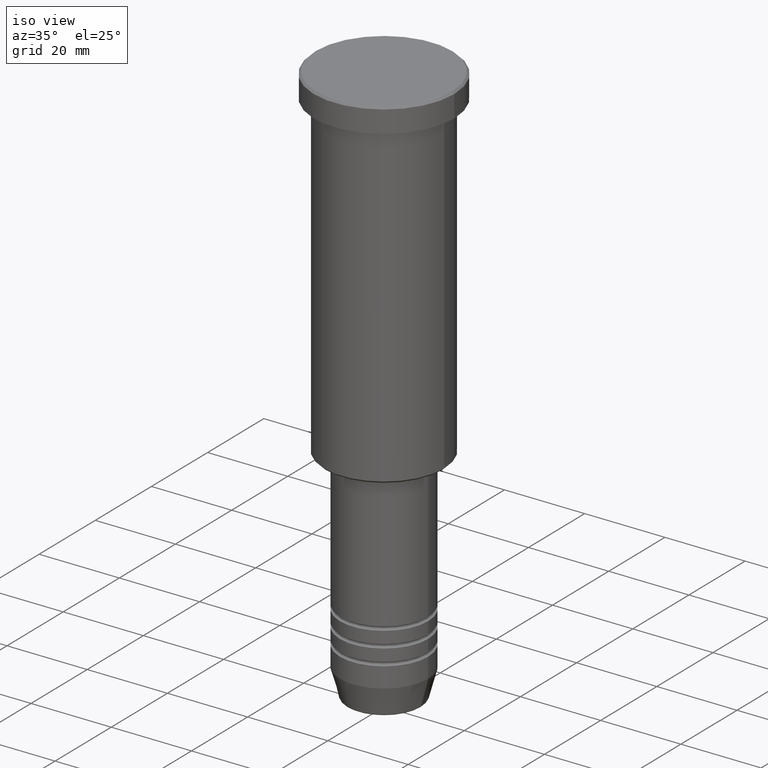
[diagram: clean part render]
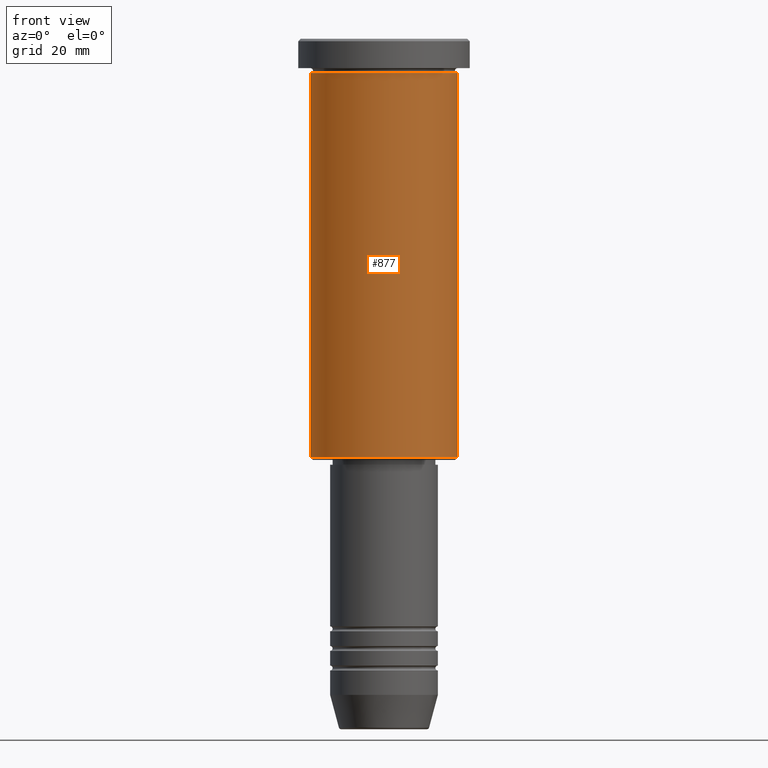
[diagram: tour spotlight — one face highlighted and labeled with its STEP entity id]
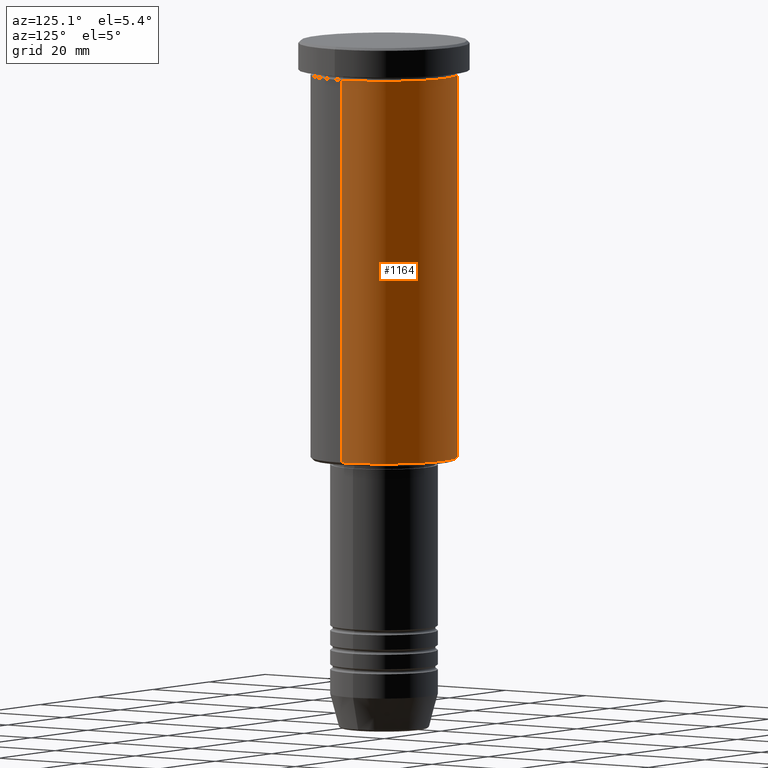
[diagram: tour spotlight — one face highlighted and labeled with its STEP entity id]
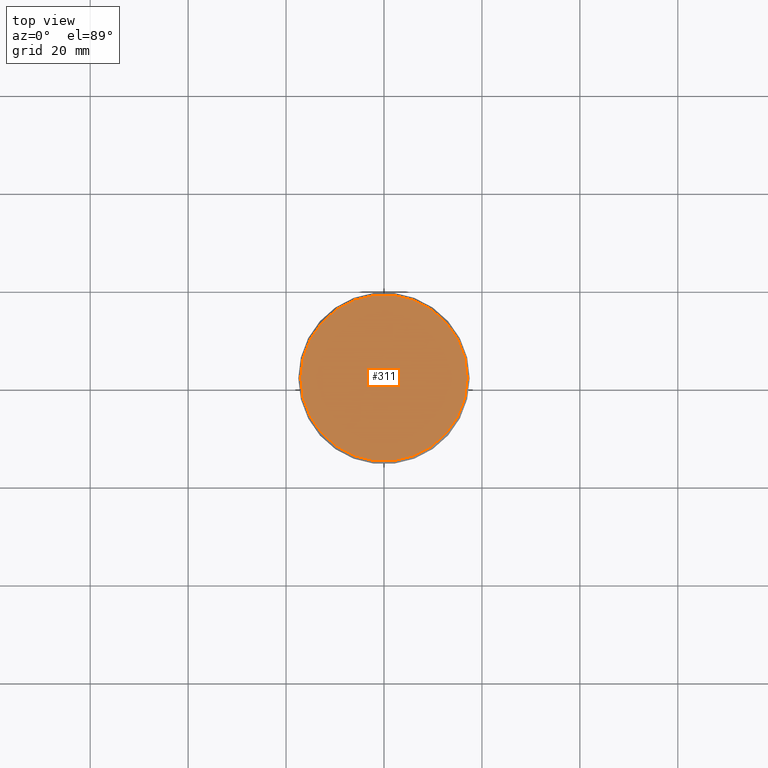
[diagram: tour spotlight — one face highlighted and labeled with its STEP entity id]
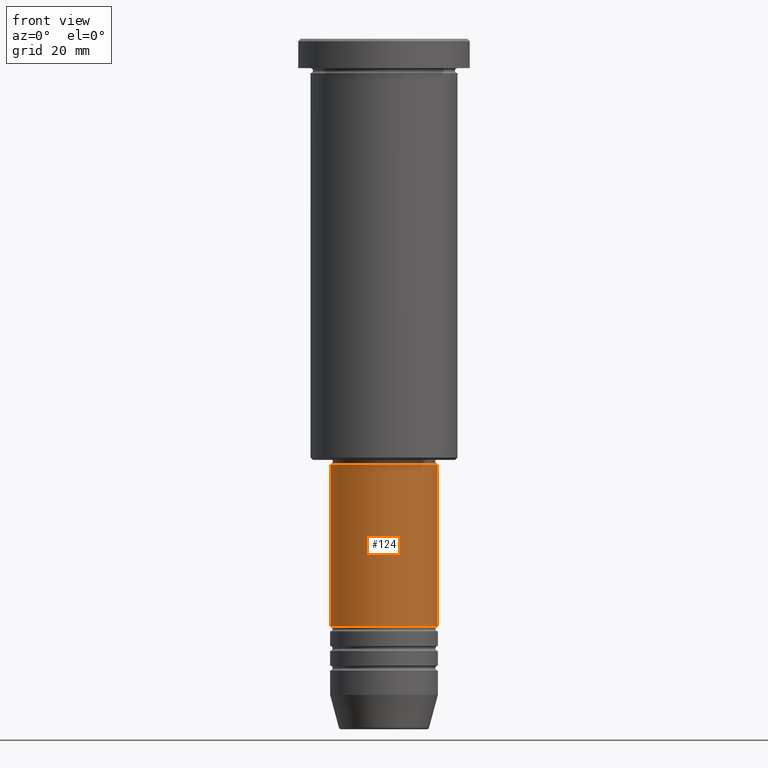
[diagram: tour spotlight — one face highlighted and labeled with its STEP entity id]
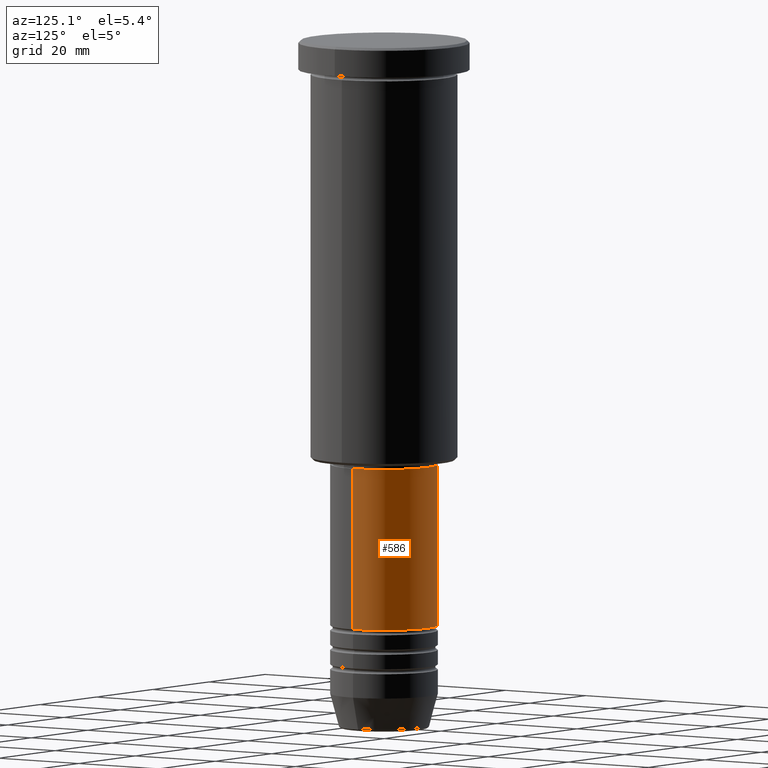
[diagram: tour spotlight — one face highlighted and labeled with its STEP entity id]
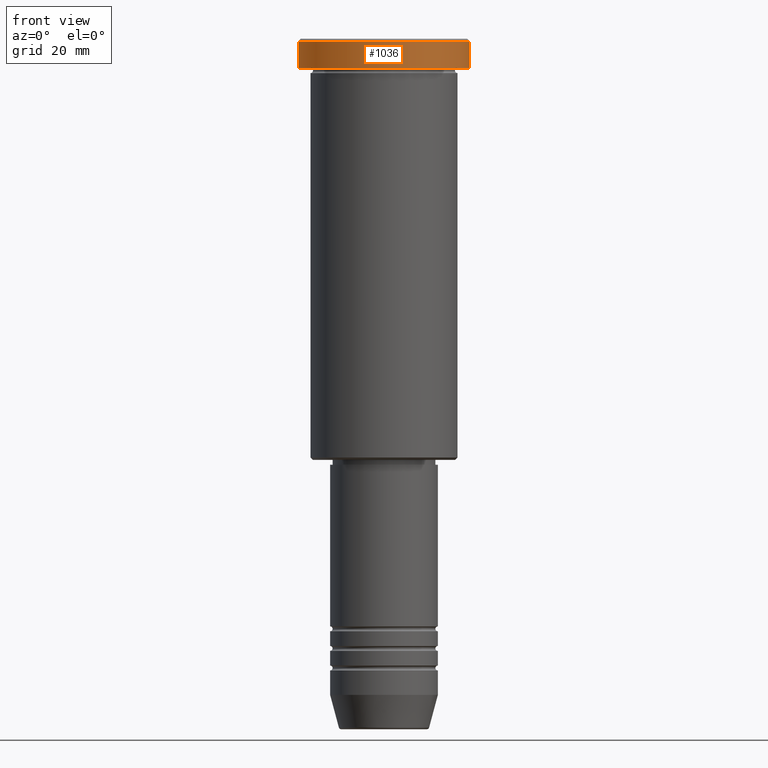
[diagram: tour spotlight — one face highlighted and labeled with its STEP entity id]
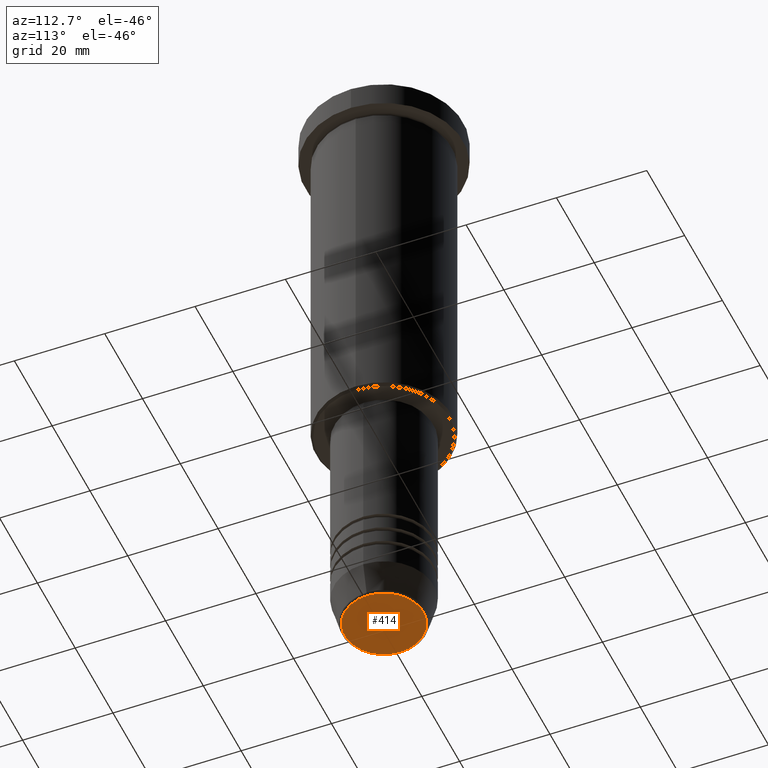
[diagram: tour spotlight — one face highlighted and labeled with its STEP entity id]
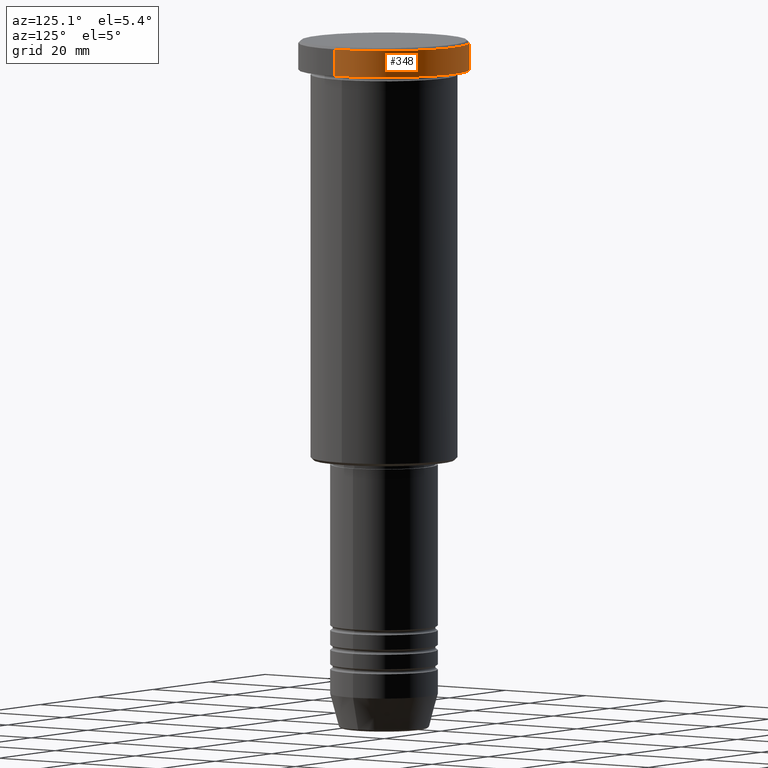
[diagram: tour spotlight — one face highlighted and labeled with its STEP entity id]
A machine part: a face-by-face anatomy tour. The part has 43 B-rep faces; the first image is the clean iso view, then the 8 largest visible faces are spotlighted one at a time (largest first), each with its STEP entity span.

Face 1 — front view, entity #877. In plain terms, the highlighted cylindrical surface (partial cylindrical patch) has radius 15 mm, axis along (-0, -0, 1).
Definition (entity closure, byte-faithful):
#6 = DIRECTION ( 'NONE',  ( -0.000000000000000000, -0.000000000000000000, 1.000000000000000000 ) ) ;
#11 = EDGE_CURVE ( 'NONE', #69, #319, #73, .T. ) ;
#26 = CARTESIAN_POINT ( 'NONE',  ( 15.00000000000000000, 0.000000000000000000, 0.000000000000000000 ) ) ;
#69 = VERTEX_POINT ( 'NONE', #596 ) ;
#73 = CIRCLE ( 'NONE', #275, 15.00000000000000000 ) ;
#154 = VECTOR ( 'NONE', #313, 1000.000000000000000 ) ;
#224 = DIRECTION ( 'NONE',  ( -0.000000000000000000, -0.000000000000000000, 1.000000000000000000 ) ) ;
#275 = AXIS2_PLACEMENT_3D ( 'NONE', #316, #415, #412 ) ;
#298 = DIRECTION ( 'NONE',  ( -0.000000000000000000, -0.000000000000000000, 1.000000000000000000 ) ) ;
#313 = DIRECTION ( 'NONE',  ( -0.000000000000000000, -0.000000000000000000, 1.000000000000000000 ) ) ;
#316 = CARTESIAN_POINT ( 'NONE',  ( 0.000000000000000000, 0.000000000000000000, -85.50000000000004263 ) ) ;
#319 = VERTEX_POINT ( 'NONE', #464 ) ;
#360 = ORIENTED_EDGE ( 'NONE', *, *, #11, .T. ) ;
#394 = LINE ( 'NONE', #1136, #154 ) ;
#406 = FACE_OUTER_BOUND ( 'NONE', #752, .T. ) ;
#412 = DIRECTION ( 'NONE',  ( -1.000000000000000000, 0.000000000000000000, 0.000000000000000000 ) ) ;
#415 = DIRECTION ( 'NONE',  ( -0.000000000000000000, -0.000000000000000000, 1.000000000000000000 ) ) ;
#464 = CARTESIAN_POINT ( 'NONE',  ( 15.00000000000000000, 0.000000000000000000, -85.50000000000004263 ) ) ;
#537 = ORIENTED_EDGE ( 'NONE', *, *, #741, .T. ) ;
#568 = CARTESIAN_POINT ( 'NONE',  ( -15.00000000000000000, 1.836970198721029589E-15, -6.999999999999995559 ) ) ;
#581 = CARTESIAN_POINT ( 'NONE',  ( 0.000000000000000000, 0.000000000000000000, 0.000000000000000000 ) ) ;
#591 = VECTOR ( 'NONE', #6, 1000.000000000000000 ) ;
#596 = CARTESIAN_POINT ( 'NONE',  ( -15.00000000000000000, 1.836970198721029589E-15, -85.50000000000004263 ) ) ;
#597 = DIRECTION ( 'NONE',  ( 1.000000000000000000, 0.000000000000000000, 0.000000000000000000 ) ) ;
#644 = CIRCLE ( 'NONE', #767, 15.00000000000000000 ) ;
#700 = VERTEX_POINT ( 'NONE', #1066 ) ;
#741 = EDGE_CURVE ( 'NONE', #319, #700, #1014, .T. ) ;
#752 = EDGE_LOOP ( 'NONE', ( #761, #360, #537, #819 ) ) ;
#760 = VERTEX_POINT ( 'NONE', #568 ) ;
#761 = ORIENTED_EDGE ( 'NONE', *, *, #888, .F. ) ;
#767 = AXIS2_PLACEMENT_3D ( 'NONE', #1055, #224, #597 ) ;
#776 = CYLINDRICAL_SURFACE ( 'NONE', #1127, 15.00000000000000000 ) ;
#819 = ORIENTED_EDGE ( 'NONE', *, *, #955, .F. ) ;
#877 = ADVANCED_FACE ( 'NONE', ( #406 ), #776, .T. ) ;
#888 = EDGE_CURVE ( 'NONE', #69, #760, #394, .T. ) ;
#955 = EDGE_CURVE ( 'NONE', #760, #700, #644, .T. ) ;
#1014 = LINE ( 'NONE', #26, #591 ) ;
#1038 = DIRECTION ( 'NONE',  ( 1.000000000000000000, 0.000000000000000000, 0.000000000000000000 ) ) ;
#1055 = CARTESIAN_POINT ( 'NONE',  ( 0.000000000000000000, 0.000000000000000000, -6.999999999999995559 ) ) ;
#1066 = CARTESIAN_POINT ( 'NONE',  ( 15.00000000000000000, 0.000000000000000000, -6.999999999999995559 ) ) ;
#1127 = AXIS2_PLACEMENT_3D ( 'NONE', #581, #298, #1038 ) ;
#1136 = CARTESIAN_POINT ( 'NONE',  ( -15.00000000000000000, 1.836970198721029589E-15, 0.000000000000000000 ) ) ;

Face 2 — auxiliary view, entity #1164. In plain terms, the highlighted cylindrical surface (partial cylindrical patch) has radius 15 mm, axis along (-0, -0, 1).
Definition (entity closure, byte-faithful):
#6 = DIRECTION ( 'NONE',  ( -0.000000000000000000, -0.000000000000000000, 1.000000000000000000 ) ) ;
#19 = AXIS2_PLACEMENT_3D ( 'NONE', #1113, #285, #737 ) ;
#26 = CARTESIAN_POINT ( 'NONE',  ( 15.00000000000000000, 0.000000000000000000, 0.000000000000000000 ) ) ;
#66 = CARTESIAN_POINT ( 'NONE',  ( 0.000000000000000000, 0.000000000000000000, -85.50000000000004263 ) ) ;
#69 = VERTEX_POINT ( 'NONE', #596 ) ;
#154 = VECTOR ( 'NONE', #313, 1000.000000000000000 ) ;
#229 = EDGE_CURVE ( 'NONE', #700, #760, #606, .T. ) ;
#235 = AXIS2_PLACEMENT_3D ( 'NONE', #66, #971, #331 ) ;
#280 = DIRECTION ( 'NONE',  ( -0.000000000000000000, -0.000000000000000000, 1.000000000000000000 ) ) ;
#285 = DIRECTION ( 'NONE',  ( -0.000000000000000000, -0.000000000000000000, 1.000000000000000000 ) ) ;
#302 = ORIENTED_EDGE ( 'NONE', *, *, #229, .F. ) ;
#313 = DIRECTION ( 'NONE',  ( -0.000000000000000000, -0.000000000000000000, 1.000000000000000000 ) ) ;
#319 = VERTEX_POINT ( 'NONE', #464 ) ;
#331 = DIRECTION ( 'NONE',  ( -1.000000000000000000, 0.000000000000000000, 0.000000000000000000 ) ) ;
#394 = LINE ( 'NONE', #1136, #154 ) ;
#439 = EDGE_LOOP ( 'NONE', ( #830, #896, #302, #467 ) ) ;
#464 = CARTESIAN_POINT ( 'NONE',  ( 15.00000000000000000, 0.000000000000000000, -85.50000000000004263 ) ) ;
#467 = ORIENTED_EDGE ( 'NONE', *, *, #741, .F. ) ;
#518 = AXIS2_PLACEMENT_3D ( 'NONE', #1079, #280, #1088 ) ;
#568 = CARTESIAN_POINT ( 'NONE',  ( -15.00000000000000000, 1.836970198721029589E-15, -6.999999999999995559 ) ) ;
#591 = VECTOR ( 'NONE', #6, 1000.000000000000000 ) ;
#596 = CARTESIAN_POINT ( 'NONE',  ( -15.00000000000000000, 1.836970198721029589E-15, -85.50000000000004263 ) ) ;
#606 = CIRCLE ( 'NONE', #518, 15.00000000000000000 ) ;
#700 = VERTEX_POINT ( 'NONE', #1066 ) ;
#737 = DIRECTION ( 'NONE',  ( 1.000000000000000000, 0.000000000000000000, 0.000000000000000000 ) ) ;
#741 = EDGE_CURVE ( 'NONE', #319, #700, #1014, .T. ) ;
#753 = FACE_OUTER_BOUND ( 'NONE', #439, .T. ) ;
#760 = VERTEX_POINT ( 'NONE', #568 ) ;
#830 = ORIENTED_EDGE ( 'NONE', *, *, #1151, .T. ) ;
#888 = EDGE_CURVE ( 'NONE', #69, #760, #394, .T. ) ;
#896 = ORIENTED_EDGE ( 'NONE', *, *, #888, .T. ) ;
#971 = DIRECTION ( 'NONE',  ( -0.000000000000000000, -0.000000000000000000, 1.000000000000000000 ) ) ;
#1007 = CYLINDRICAL_SURFACE ( 'NONE', #19, 15.00000000000000000 ) ;
#1014 = LINE ( 'NONE', #26, #591 ) ;
#1035 = CIRCLE ( 'NONE', #235, 15.00000000000000000 ) ;
#1066 = CARTESIAN_POINT ( 'NONE',  ( 15.00000000000000000, 0.000000000000000000, -6.999999999999995559 ) ) ;
#1079 = CARTESIAN_POINT ( 'NONE',  ( 0.000000000000000000, 0.000000000000000000, -6.999999999999995559 ) ) ;
#1088 = DIRECTION ( 'NONE',  ( 1.000000000000000000, 0.000000000000000000, 0.000000000000000000 ) ) ;
#1113 = CARTESIAN_POINT ( 'NONE',  ( 0.000000000000000000, 0.000000000000000000, 0.000000000000000000 ) ) ;
#1136 = CARTESIAN_POINT ( 'NONE',  ( -15.00000000000000000, 1.836970198721029589E-15, 0.000000000000000000 ) ) ;
#1151 = EDGE_CURVE ( 'NONE', #319, #69, #1035, .T. ) ;
#1164 = ADVANCED_FACE ( 'NONE', ( #753 ), #1007, .T. ) ;

Face 3 — top view, entity #311. In plain terms, the highlighted planar face has unit normal (0, -0, 1).
Definition (entity closure, byte-faithful):
#74 = AXIS2_PLACEMENT_3D ( 'NONE', #357, #560, #81 ) ;
#81 = DIRECTION ( 'NONE',  ( 1.000000000000000000, 0.000000000000000000, 0.000000000000000000 ) ) ;
#89 = EDGE_LOOP ( 'NONE', ( #471, #631 ) ) ;
#129 = VERTEX_POINT ( 'NONE', #538 ) ;
#175 = AXIS2_PLACEMENT_3D ( 'NONE', #573, #578, #191 ) ;
#176 = DIRECTION ( 'NONE',  ( 1.000000000000000000, 0.000000000000000000, 0.000000000000000000 ) ) ;
#191 = DIRECTION ( 'NONE',  ( 1.000000000000000000, 0.000000000000000000, 0.000000000000000000 ) ) ;
#200 = CARTESIAN_POINT ( 'NONE',  ( -16.99999999999998579, 0.000000000000000000, 0.000000000000000000 ) ) ;
#253 = CARTESIAN_POINT ( 'NONE',  ( 0.000000000000000000, 0.000000000000000000, 0.000000000000000000 ) ) ;
#297 = AXIS2_PLACEMENT_3D ( 'NONE', #253, #1175, #176 ) ;
#311 = ADVANCED_FACE ( 'NONE', ( #1099 ), #474, .T. ) ;
#357 = CARTESIAN_POINT ( 'NONE',  ( 0.000000000000000000, 0.000000000000000000, 0.000000000000000000 ) ) ;
#471 = ORIENTED_EDGE ( 'NONE', *, *, #579, .T. ) ;
#474 = PLANE ( 'NONE',  #74 ) ;
#538 = CARTESIAN_POINT ( 'NONE',  ( 16.99999999999998579, 2.112515728529183278E-15, 0.000000000000000000 ) ) ;
#560 = DIRECTION ( 'NONE',  ( 0.000000000000000000, -0.000000000000000000, 1.000000000000000000 ) ) ;
#567 = EDGE_CURVE ( 'NONE', #129, #851, #666, .T. ) ;
#572 = CIRCLE ( 'NONE', #175, 16.99999999999998579 ) ;
#573 = CARTESIAN_POINT ( 'NONE',  ( 0.000000000000000000, 0.000000000000000000, 0.000000000000000000 ) ) ;
#578 = DIRECTION ( 'NONE',  ( -0.000000000000000000, -0.000000000000000000, 1.000000000000000000 ) ) ;
#579 = EDGE_CURVE ( 'NONE', #851, #129, #572, .T. ) ;
#631 = ORIENTED_EDGE ( 'NONE', *, *, #567, .T. ) ;
#666 = CIRCLE ( 'NONE', #297, 16.99999999999998579 ) ;
#851 = VERTEX_POINT ( 'NONE', #200 ) ;
#1099 = FACE_OUTER_BOUND ( 'NONE', #89, .T. ) ;
#1175 = DIRECTION ( 'NONE',  ( -0.000000000000000000, -0.000000000000000000, 1.000000000000000000 ) ) ;

Face 4 — front view, entity #124. In plain terms, the highlighted cylindrical surface (partial cylindrical patch) has radius 11 mm, axis along (-0, -0, 1).
Definition (entity closure, byte-faithful):
#9 = ORIENTED_EDGE ( 'NONE', *, *, #52, .T. ) ;
#29 = ORIENTED_EDGE ( 'NONE', *, *, #789, .T. ) ;
#52 = EDGE_CURVE ( 'NONE', #772, #481, #1029, .T. ) ;
#63 = EDGE_CURVE ( 'NONE', #82, #827, #217, .T. ) ;
#82 = VERTEX_POINT ( 'NONE', #1044 ) ;
#91 = DIRECTION ( 'NONE',  ( 1.000000000000000000, 0.000000000000000000, 0.000000000000000000 ) ) ;
#124 = ADVANCED_FACE ( 'NONE', ( #528 ), #1064, .T. ) ;
#148 = AXIS2_PLACEMENT_3D ( 'NONE', #347, #1149, #891 ) ;
#186 = CARTESIAN_POINT ( 'NONE',  ( 0.000000000000000000, 0.000000000000000000, -119.9999999999999005 ) ) ;
#210 = ORIENTED_EDGE ( 'NONE', *, *, #63, .F. ) ;
#217 = LINE ( 'NONE', #288, #683 ) ;
#273 = CIRCLE ( 'NONE', #958, 11.00000000000000000 ) ;
#288 = CARTESIAN_POINT ( 'NONE',  ( -11.00000000000000000, 1.347111479062088405E-15, 0.000000000000000000 ) ) ;
#306 = CARTESIAN_POINT ( 'NONE',  ( 11.00000000000000000, 0.000000000000000000, 0.000000000000000000 ) ) ;
#327 = DIRECTION ( 'NONE',  ( -0.000000000000000000, -0.000000000000000000, 1.000000000000000000 ) ) ;
#335 = VECTOR ( 'NONE', #869, 1000.000000000000000 ) ;
#347 = CARTESIAN_POINT ( 'NONE',  ( 0.000000000000000000, 0.000000000000000000, 0.000000000000000000 ) ) ;
#460 = AXIS2_PLACEMENT_3D ( 'NONE', #1145, #327, #692 ) ;
#481 = VERTEX_POINT ( 'NONE', #719 ) ;
#504 = DIRECTION ( 'NONE',  ( -0.000000000000000000, -0.000000000000000000, 1.000000000000000000 ) ) ;
#528 = FACE_OUTER_BOUND ( 'NONE', #867, .T. ) ;
#683 = VECTOR ( 'NONE', #504, 1000.000000000000000 ) ;
#692 = DIRECTION ( 'NONE',  ( 1.000000000000000000, 0.000000000000000000, 0.000000000000000000 ) ) ;
#719 = CARTESIAN_POINT ( 'NONE',  ( 11.00000000000000000, 0.000000000000000000, -87.00000000000000000 ) ) ;
#743 = CARTESIAN_POINT ( 'NONE',  ( 11.00000000000000000, 0.000000000000000000, -119.9999999999999005 ) ) ;
#772 = VERTEX_POINT ( 'NONE', #743 ) ;
#787 = CIRCLE ( 'NONE', #460, 11.00000000000000000 ) ;
#789 = EDGE_CURVE ( 'NONE', #82, #772, #273, .T. ) ;
#827 = VERTEX_POINT ( 'NONE', #1111 ) ;
#867 = EDGE_LOOP ( 'NONE', ( #210, #29, #9, #1093 ) ) ;
#869 = DIRECTION ( 'NONE',  ( -0.000000000000000000, -0.000000000000000000, 1.000000000000000000 ) ) ;
#891 = DIRECTION ( 'NONE',  ( 1.000000000000000000, 0.000000000000000000, 0.000000000000000000 ) ) ;
#930 = DIRECTION ( 'NONE',  ( -0.000000000000000000, -0.000000000000000000, 1.000000000000000000 ) ) ;
#958 = AXIS2_PLACEMENT_3D ( 'NONE', #186, #930, #91 ) ;
#982 = EDGE_CURVE ( 'NONE', #827, #481, #787, .T. ) ;
#1029 = LINE ( 'NONE', #306, #335 ) ;
#1044 = CARTESIAN_POINT ( 'NONE',  ( -11.00000000000000000, 1.347111479062088405E-15, -119.9999999999999005 ) ) ;
#1064 = CYLINDRICAL_SURFACE ( 'NONE', #148, 11.00000000000000000 ) ;
#1093 = ORIENTED_EDGE ( 'NONE', *, *, #982, .F. ) ;
#1111 = CARTESIAN_POINT ( 'NONE',  ( -11.00000000000000000, 1.347111479062088405E-15, -87.00000000000000000 ) ) ;
#1145 = CARTESIAN_POINT ( 'NONE',  ( 0.000000000000000000, 0.000000000000000000, -87.00000000000000000 ) ) ;
#1149 = DIRECTION ( 'NONE',  ( -0.000000000000000000, -0.000000000000000000, 1.000000000000000000 ) ) ;

Face 5 — auxiliary view, entity #586. In plain terms, the highlighted cylindrical surface (partial cylindrical patch) has radius 11 mm, axis along (-0, -0, 1).
Definition (entity closure, byte-faithful):
#52 = EDGE_CURVE ( 'NONE', #772, #481, #1029, .T. ) ;
#63 = EDGE_CURVE ( 'NONE', #82, #827, #217, .T. ) ;
#82 = VERTEX_POINT ( 'NONE', #1044 ) ;
#97 = AXIS2_PLACEMENT_3D ( 'NONE', #184, #486, #472 ) ;
#184 = CARTESIAN_POINT ( 'NONE',  ( 0.000000000000000000, 0.000000000000000000, 0.000000000000000000 ) ) ;
#217 = LINE ( 'NONE', #288, #683 ) ;
#282 = CARTESIAN_POINT ( 'NONE',  ( 0.000000000000000000, 0.000000000000000000, -119.9999999999999005 ) ) ;
#283 = ORIENTED_EDGE ( 'NONE', *, *, #544, .F. ) ;
#288 = CARTESIAN_POINT ( 'NONE',  ( -11.00000000000000000, 1.347111479062088405E-15, 0.000000000000000000 ) ) ;
#295 = CIRCLE ( 'NONE', #382, 11.00000000000000000 ) ;
#300 = AXIS2_PLACEMENT_3D ( 'NONE', #282, #640, #558 ) ;
#306 = CARTESIAN_POINT ( 'NONE',  ( 11.00000000000000000, 0.000000000000000000, 0.000000000000000000 ) ) ;
#335 = VECTOR ( 'NONE', #869, 1000.000000000000000 ) ;
#382 = AXIS2_PLACEMENT_3D ( 'NONE', #808, #911, #539 ) ;
#391 = EDGE_LOOP ( 'NONE', ( #1112, #909, #283, #654 ) ) ;
#438 = CIRCLE ( 'NONE', #300, 11.00000000000000000 ) ;
#472 = DIRECTION ( 'NONE',  ( 1.000000000000000000, 0.000000000000000000, 0.000000000000000000 ) ) ;
#478 = CYLINDRICAL_SURFACE ( 'NONE', #97, 11.00000000000000000 ) ;
#481 = VERTEX_POINT ( 'NONE', #719 ) ;
#486 = DIRECTION ( 'NONE',  ( -0.000000000000000000, -0.000000000000000000, 1.000000000000000000 ) ) ;
#504 = DIRECTION ( 'NONE',  ( -0.000000000000000000, -0.000000000000000000, 1.000000000000000000 ) ) ;
#539 = DIRECTION ( 'NONE',  ( 1.000000000000000000, 0.000000000000000000, 0.000000000000000000 ) ) ;
#544 = EDGE_CURVE ( 'NONE', #481, #827, #295, .T. ) ;
#558 = DIRECTION ( 'NONE',  ( 1.000000000000000000, 0.000000000000000000, 0.000000000000000000 ) ) ;
#586 = ADVANCED_FACE ( 'NONE', ( #944 ), #478, .T. ) ;
#640 = DIRECTION ( 'NONE',  ( -0.000000000000000000, -0.000000000000000000, 1.000000000000000000 ) ) ;
#654 = ORIENTED_EDGE ( 'NONE', *, *, #52, .F. ) ;
#683 = VECTOR ( 'NONE', #504, 1000.000000000000000 ) ;
#719 = CARTESIAN_POINT ( 'NONE',  ( 11.00000000000000000, 0.000000000000000000, -87.00000000000000000 ) ) ;
#743 = CARTESIAN_POINT ( 'NONE',  ( 11.00000000000000000, 0.000000000000000000, -119.9999999999999005 ) ) ;
#772 = VERTEX_POINT ( 'NONE', #743 ) ;
#808 = CARTESIAN_POINT ( 'NONE',  ( 0.000000000000000000, 0.000000000000000000, -87.00000000000000000 ) ) ;
#827 = VERTEX_POINT ( 'NONE', #1111 ) ;
#836 = EDGE_CURVE ( 'NONE', #772, #82, #438, .T. ) ;
#869 = DIRECTION ( 'NONE',  ( -0.000000000000000000, -0.000000000000000000, 1.000000000000000000 ) ) ;
#909 = ORIENTED_EDGE ( 'NONE', *, *, #63, .T. ) ;
#911 = DIRECTION ( 'NONE',  ( -0.000000000000000000, -0.000000000000000000, 1.000000000000000000 ) ) ;
#944 = FACE_OUTER_BOUND ( 'NONE', #391, .T. ) ;
#1029 = LINE ( 'NONE', #306, #335 ) ;
#1044 = CARTESIAN_POINT ( 'NONE',  ( -11.00000000000000000, 1.347111479062088405E-15, -119.9999999999999005 ) ) ;
#1111 = CARTESIAN_POINT ( 'NONE',  ( -11.00000000000000000, 1.347111479062088405E-15, -87.00000000000000000 ) ) ;
#1112 = ORIENTED_EDGE ( 'NONE', *, *, #836, .T. ) ;

Face 6 — front view, entity #1036. In plain terms, the highlighted cylindrical surface (partial cylindrical patch) has radius 17.5 mm, axis along (-0, -0, 1).
Definition (entity closure, byte-faithful):
#7 = ORIENTED_EDGE ( 'NONE', *, *, #365, .T. ) ;
#17 = VECTOR ( 'NONE', #53, 1000.000000000000000 ) ;
#42 = DIRECTION ( 'NONE',  ( -0.000000000000000000, -0.000000000000000000, 1.000000000000000000 ) ) ;
#53 = DIRECTION ( 'NONE',  ( -0.000000000000000000, -0.000000000000000000, 1.000000000000000000 ) ) ;
#125 = CARTESIAN_POINT ( 'NONE',  ( 0.000000000000000000, 0.000000000000000000, 0.000000000000000000 ) ) ;
#161 = ORIENTED_EDGE ( 'NONE', *, *, #716, .F. ) ;
#168 = CARTESIAN_POINT ( 'NONE',  ( 17.50000000000000000, 0.000000000000000000, -5.999999999999995559 ) ) ;
#177 = AXIS2_PLACEMENT_3D ( 'NONE', #125, #509, #411 ) ;
#232 = CIRCLE ( 'NONE', #454, 17.50000000000000000 ) ;
#271 = AXIS2_PLACEMENT_3D ( 'NONE', #364, #636, #828 ) ;
#305 = CYLINDRICAL_SURFACE ( 'NONE', #177, 17.50000000000000000 ) ;
#364 = CARTESIAN_POINT ( 'NONE',  ( 0.000000000000000000, 0.000000000000000000, -0.5000000000000143219 ) ) ;
#365 = EDGE_CURVE ( 'NONE', #583, #1009, #802, .T. ) ;
#376 = CARTESIAN_POINT ( 'NONE',  ( -17.50000000000000000, 2.143131898507868248E-15, 0.000000000000000000 ) ) ;
#383 = EDGE_CURVE ( 'NONE', #812, #431, #232, .T. ) ;
#400 = CARTESIAN_POINT ( 'NONE',  ( 17.50000000000000000, 0.000000000000000000, -0.5000000000000143219 ) ) ;
#411 = DIRECTION ( 'NONE',  ( 1.000000000000000000, 0.000000000000000000, 0.000000000000000000 ) ) ;
#431 = VERTEX_POINT ( 'NONE', #168 ) ;
#433 = LINE ( 'NONE', #1161, #17 ) ;
#453 = EDGE_LOOP ( 'NONE', ( #161, #988, #1049, #7 ) ) ;
#454 = AXIS2_PLACEMENT_3D ( 'NONE', #871, #42, #790 ) ;
#509 = DIRECTION ( 'NONE',  ( -0.000000000000000000, -0.000000000000000000, 1.000000000000000000 ) ) ;
#519 = VECTOR ( 'NONE', #653, 1000.000000000000000 ) ;
#577 = LINE ( 'NONE', #376, #519 ) ;
#583 = VERTEX_POINT ( 'NONE', #400 ) ;
#636 = DIRECTION ( 'NONE',  ( 0.000000000000000000, 0.000000000000000000, -1.000000000000000000 ) ) ;
#653 = DIRECTION ( 'NONE',  ( -0.000000000000000000, -0.000000000000000000, 1.000000000000000000 ) ) ;
#716 = EDGE_CURVE ( 'NONE', #812, #1009, #577, .T. ) ;
#769 = FACE_OUTER_BOUND ( 'NONE', #453, .T. ) ;
#790 = DIRECTION ( 'NONE',  ( 1.000000000000000000, 0.000000000000000000, 0.000000000000000000 ) ) ;
#802 = CIRCLE ( 'NONE', #271, 17.50000000000000000 ) ;
#812 = VERTEX_POINT ( 'NONE', #1182 ) ;
#828 = DIRECTION ( 'NONE',  ( 1.000000000000000000, 0.000000000000000000, 0.000000000000000000 ) ) ;
#871 = CARTESIAN_POINT ( 'NONE',  ( 0.000000000000000000, 0.000000000000000000, -5.999999999999995559 ) ) ;
#945 = CARTESIAN_POINT ( 'NONE',  ( -17.50000000000000000, 2.143131898507868248E-15, -0.5000000000000143219 ) ) ;
#988 = ORIENTED_EDGE ( 'NONE', *, *, #383, .T. ) ;
#1009 = VERTEX_POINT ( 'NONE', #945 ) ;
#1036 = ADVANCED_FACE ( 'NONE', ( #769 ), #305, .T. ) ;
#1049 = ORIENTED_EDGE ( 'NONE', *, *, #1089, .T. ) ;
#1089 = EDGE_CURVE ( 'NONE', #431, #583, #433, .T. ) ;
#1161 = CARTESIAN_POINT ( 'NONE',  ( 17.50000000000000000, 0.000000000000000000, 0.000000000000000000 ) ) ;
#1182 = CARTESIAN_POINT ( 'NONE',  ( -17.50000000000000000, 2.143131898507868248E-15, -5.999999999999995559 ) ) ;

Face 7 — auxiliary view, entity #414. In plain terms, the highlighted planar face has unit normal (0, -0, 1).
Definition (entity closure, byte-faithful):
#92 = VERTEX_POINT ( 'NONE', #403 ) ;
#208 = DIRECTION ( 'NONE',  ( 1.000000000000000000, 0.000000000000000000, 0.000000000000000000 ) ) ;
#244 = DIRECTION ( 'NONE',  ( 0.000000000000000000, -0.000000000000000000, 1.000000000000000000 ) ) ;
#257 = EDGE_CURVE ( 'NONE', #92, #396, #1051, .T. ) ;
#266 = CARTESIAN_POINT ( 'NONE',  ( 0.000000000000000000, 0.000000000000000000, -141.0000000000000000 ) ) ;
#396 = VERTEX_POINT ( 'NONE', #742 ) ;
#403 = CARTESIAN_POINT ( 'NONE',  ( 8.740692158992656502, 0.000000000000000000, -141.0000000000000000 ) ) ;
#413 = CARTESIAN_POINT ( 'NONE',  ( 0.000000000000000000, 0.000000000000000000, -141.0000000000000000 ) ) ;
#414 = ADVANCED_FACE ( 'NONE', ( #630 ), #1096, .F. ) ;
#511 = DIRECTION ( 'NONE',  ( 0.000000000000000000, 0.000000000000000000, -1.000000000000000000 ) ) ;
#630 = FACE_OUTER_BOUND ( 'NONE', #1019, .T. ) ;
#632 = DIRECTION ( 'NONE',  ( 1.000000000000000000, 0.000000000000000000, 0.000000000000000000 ) ) ;
#651 = DIRECTION ( 'NONE',  ( 0.000000000000000000, 0.000000000000000000, -1.000000000000000000 ) ) ;
#667 = CIRCLE ( 'NONE', #705, 8.740692158992656502 ) ;
#673 = ORIENTED_EDGE ( 'NONE', *, *, #257, .T. ) ;
#705 = AXIS2_PLACEMENT_3D ( 'NONE', #413, #511, #208 ) ;
#742 = CARTESIAN_POINT ( 'NONE',  ( -8.740692158992656502, 1.099999016768739653E-15, -141.0000000000000000 ) ) ;
#745 = AXIS2_PLACEMENT_3D ( 'NONE', #814, #651, #632 ) ;
#814 = CARTESIAN_POINT ( 'NONE',  ( 0.000000000000000000, 0.000000000000000000, -141.0000000000000000 ) ) ;
#868 = EDGE_CURVE ( 'NONE', #396, #92, #667, .T. ) ;
#912 = AXIS2_PLACEMENT_3D ( 'NONE', #266, #244, #1169 ) ;
#997 = ORIENTED_EDGE ( 'NONE', *, *, #868, .T. ) ;
#1019 = EDGE_LOOP ( 'NONE', ( #673, #997 ) ) ;
#1051 = CIRCLE ( 'NONE', #745, 8.740692158992656502 ) ;
#1096 = PLANE ( 'NONE',  #912 ) ;
#1169 = DIRECTION ( 'NONE',  ( 1.000000000000000000, 0.000000000000000000, 0.000000000000000000 ) ) ;

Face 8 — auxiliary view, entity #348. In plain terms, the highlighted cylindrical surface (partial cylindrical patch) has radius 17.5 mm, axis along (-0, -0, 1).
Definition (entity closure, byte-faithful):
#17 = VECTOR ( 'NONE', #53, 1000.000000000000000 ) ;
#53 = DIRECTION ( 'NONE',  ( -0.000000000000000000, -0.000000000000000000, 1.000000000000000000 ) ) ;
#116 = ORIENTED_EDGE ( 'NONE', *, *, #1089, .F. ) ;
#159 = DIRECTION ( 'NONE',  ( 1.000000000000000000, 0.000000000000000000, 0.000000000000000000 ) ) ;
#168 = CARTESIAN_POINT ( 'NONE',  ( 17.50000000000000000, 0.000000000000000000, -5.999999999999995559 ) ) ;
#209 = EDGE_LOOP ( 'NONE', ( #641, #1073, #754, #116 ) ) ;
#263 = DIRECTION ( 'NONE',  ( -0.000000000000000000, -0.000000000000000000, 1.000000000000000000 ) ) ;
#274 = CIRCLE ( 'NONE', #1016, 17.50000000000000000 ) ;
#320 = EDGE_CURVE ( 'NONE', #431, #812, #1154, .T. ) ;
#348 = ADVANCED_FACE ( 'NONE', ( #994 ), #926, .T. ) ;
#376 = CARTESIAN_POINT ( 'NONE',  ( -17.50000000000000000, 2.143131898507868248E-15, 0.000000000000000000 ) ) ;
#400 = CARTESIAN_POINT ( 'NONE',  ( 17.50000000000000000, 0.000000000000000000, -0.5000000000000143219 ) ) ;
#431 = VERTEX_POINT ( 'NONE', #168 ) ;
#433 = LINE ( 'NONE', #1161, #17 ) ;
#437 = CARTESIAN_POINT ( 'NONE',  ( 0.000000000000000000, 0.000000000000000000, -0.5000000000000143219 ) ) ;
#519 = VECTOR ( 'NONE', #653, 1000.000000000000000 ) ;
#547 = CARTESIAN_POINT ( 'NONE',  ( 0.000000000000000000, 0.000000000000000000, 0.000000000000000000 ) ) ;
#577 = LINE ( 'NONE', #376, #519 ) ;
#583 = VERTEX_POINT ( 'NONE', #400 ) ;
#641 = ORIENTED_EDGE ( 'NONE', *, *, #320, .T. ) ;
#653 = DIRECTION ( 'NONE',  ( -0.000000000000000000, -0.000000000000000000, 1.000000000000000000 ) ) ;
#664 = AXIS2_PLACEMENT_3D ( 'NONE', #1170, #738, #730 ) ;
#716 = EDGE_CURVE ( 'NONE', #812, #1009, #577, .T. ) ;
#730 = DIRECTION ( 'NONE',  ( 1.000000000000000000, 0.000000000000000000, 0.000000000000000000 ) ) ;
#738 = DIRECTION ( 'NONE',  ( -0.000000000000000000, -0.000000000000000000, 1.000000000000000000 ) ) ;
#754 = ORIENTED_EDGE ( 'NONE', *, *, #1080, .T. ) ;
#812 = VERTEX_POINT ( 'NONE', #1182 ) ;
#887 = DIRECTION ( 'NONE',  ( 0.000000000000000000, 0.000000000000000000, -1.000000000000000000 ) ) ;
#926 = CYLINDRICAL_SURFACE ( 'NONE', #1083, 17.50000000000000000 ) ;
#945 = CARTESIAN_POINT ( 'NONE',  ( -17.50000000000000000, 2.143131898507868248E-15, -0.5000000000000143219 ) ) ;
#994 = FACE_OUTER_BOUND ( 'NONE', #209, .T. ) ;
#1009 = VERTEX_POINT ( 'NONE', #945 ) ;
#1016 = AXIS2_PLACEMENT_3D ( 'NONE', #437, #887, #1087 ) ;
#1073 = ORIENTED_EDGE ( 'NONE', *, *, #716, .T. ) ;
#1080 = EDGE_CURVE ( 'NONE', #1009, #583, #274, .T. ) ;
#1083 = AXIS2_PLACEMENT_3D ( 'NONE', #547, #263, #159 ) ;
#1087 = DIRECTION ( 'NONE',  ( 1.000000000000000000, 0.000000000000000000, 0.000000000000000000 ) ) ;
#1089 = EDGE_CURVE ( 'NONE', #431, #583, #433, .T. ) ;
#1154 = CIRCLE ( 'NONE', #664, 17.50000000000000000 ) ;
#1161 = CARTESIAN_POINT ( 'NONE',  ( 17.50000000000000000, 0.000000000000000000, 0.000000000000000000 ) ) ;
#1170 = CARTESIAN_POINT ( 'NONE',  ( 0.000000000000000000, 0.000000000000000000, -5.999999999999995559 ) ) ;
#1182 = CARTESIAN_POINT ( 'NONE',  ( -17.50000000000000000, 2.143131898507868248E-15, -5.999999999999995559 ) ) ;